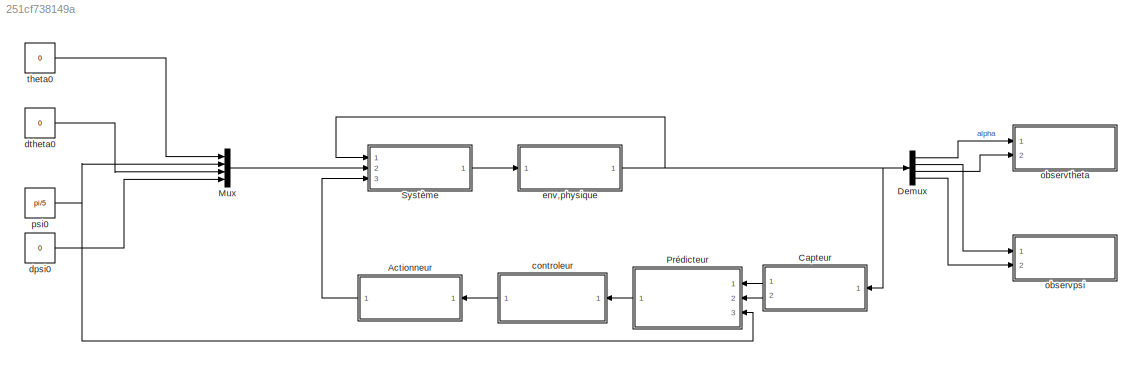
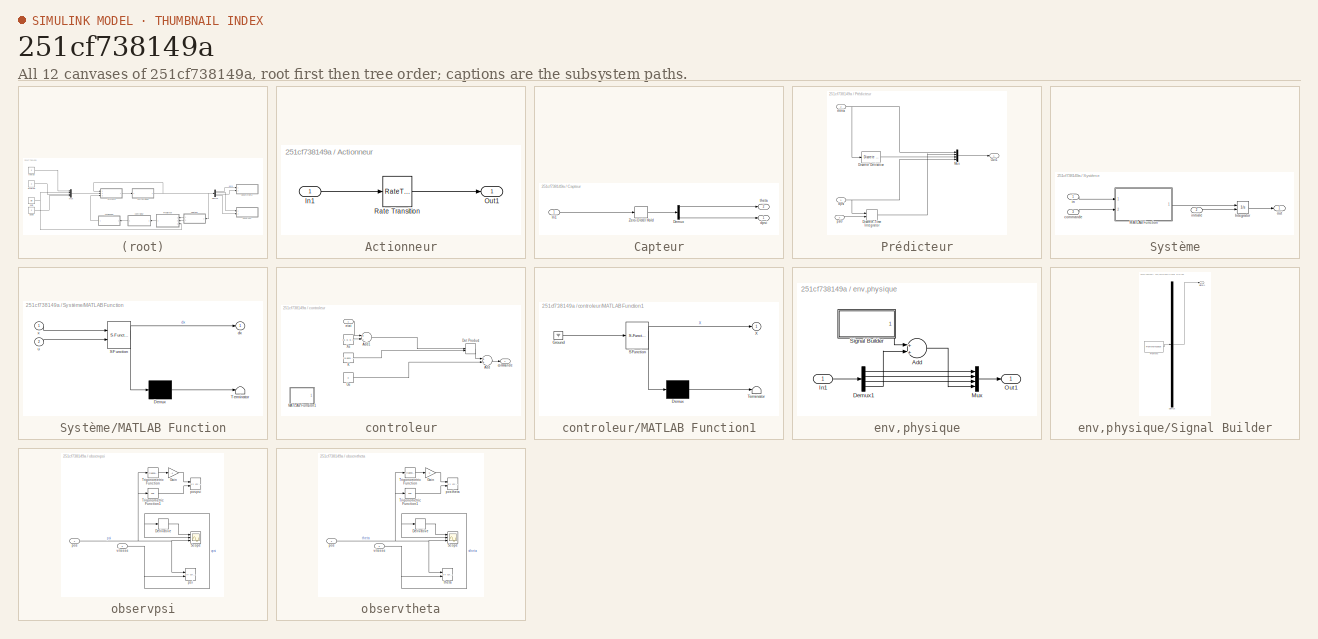
[diagram: thumbnail index - all 12 canvases of the model, root first then tree order]
MODEL slx_251cf738149a
KIND model
CONFIG AbsTol = auto
CONFIG FixedStep = 4*pi*sqrt(10/9.81) / 500
CONFIG MaxStep = auto
CONFIG MinStep = auto
CONFIG RelTol = 1e-6
CONFIG SampleTimeConstraint = Unconstrained
CONFIG Solver = VariableStepAuto
CONFIG SolverMode = Auto
CONFIG SolverName = VariableStepAuto
CONFIG StartTime = 0.0
CONFIG StopTime = 4*pi*sqrt(10/9.81)
BLOCK [SubSystem] Actionneur
  Ports = [1, 1]
  RequestExecContextInheritance = off
  Variant = off
BLOCK [Inport] Actionneur/In1
  IconDisplay = Port number
BLOCK [Outport] Actionneur/Out1
  IconDisplay = Port number
BLOCK [RateTransition] Actionneur/Rate Transition
  X0 = -1
BLOCK [SubSystem] Capteur
  Ports = [1, 2]
  RequestExecContextInheritance = off
  Variant = off
BLOCK [Demux] Capteur/Demux
  DisplayOption = bar
  Ports = [1, 4]
BLOCK [Inport] Capteur/In1
  IconDisplay = Port number
BLOCK [ZeroOrderHold] Capteur/Zero-Order Hold
  SampleTime = 0.003
BLOCK [Outport] Capteur/dpsi
  IconDisplay = Port number
BLOCK [Outport] Capteur/theta
  IconDisplay = Port number
  Port = 2
BLOCK [Demux] Demux
  DisplayOption = bar
  Ports = [1, 4]
BLOCK [Mux] Mux
  DisplayOption = bar
  Ports = [4, 1]
BLOCK [SubSystem] Prédicteur
  Ports = [3, 1]
  RequestExecContextInheritance = off
  Variant = off
BLOCK [Reference] Prédicteur/Discrete Derivative  REF=simulink/Discrete/Discrete Derivative
  Ports = [1, 1]
  SourceBlock = simulink/Discrete/Discrete Derivative
  SourceType = Discrete Derivative
BLOCK [DiscreteIntegrator] Prédicteur/Discrete-Time Integrator
  ICPrevOutput = DiscIntNeverNeededParam
  ICPrevScaledInput = DiscIntNeverNeededParam
  InitialConditionSetting = State (most efficient)
  InitialConditionSource = external
  Ports = [2, 1]
  SampleTime = -1
BLOCK [Mux] Prédicteur/Mux
  DisplayOption = bar
  Ports = [4, 1]
BLOCK [Outport] Prédicteur/Out1
  IconDisplay = Port number
BLOCK [Inport] Prédicteur/dpsi
  IconDisplay = Port number
BLOCK [Inport] Prédicteur/psi0 
  IconDisplay = Port number
  Port = 3
BLOCK [Inport] Prédicteur/theta
  IconDisplay = Port number
  Port = 2
BLOCK [SubSystem] Système
  Ports = [3, 1]
  RequestExecContextInheritance = off
  Variant = off
BLOCK [Integrator] Système/Integrator
  InitialConditionSource = external
  Ports = [2, 1]
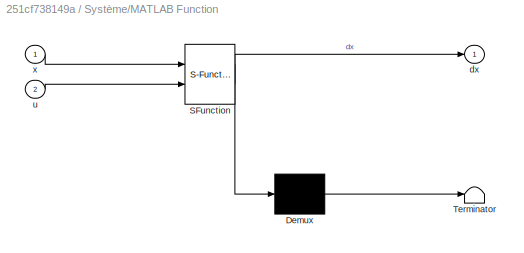
BLOCK [SubSystem] Système/MATLAB Function
  ErrorFcn = Stateflow.Translate.translate
  PermitHierarchicalResolution = ExplicitOnly
  Ports = [2, 1]
  RTWSystemCode = Inline
  RequestExecContextInheritance = off
  SFBlockType = MATLAB Function
  TreatAsAtomicUnit = on
  Variant = off
BLOCK [Demux] Système/MATLAB Function/ Demux 
  Outputs = 1
  Ports = [1, 1]
BLOCK [S-Function] Système/MATLAB Function/ SFunction 
  EnableBusSupport = on
  FunctionName = sf_sfun
  PortCounts = [2 2]
  Ports = [2, 2]
  SFunctionDeploymentMode = off
  Tag = Stateflow S-Function TP4_1 2
BLOCK [Terminator] Système/MATLAB Function/ Terminator 
BLOCK [Outport] Système/MATLAB Function/dx
  IconDisplay = Port number
BLOCK [Inport] Système/MATLAB Function/u
  IconDisplay = Port number
  Port = 2
BLOCK [Inport] Système/MATLAB Function/x
  IconDisplay = Port number
BLOCK [Inport] Système/commande
  IconDisplay = Port number
  Port = 3
BLOCK [Inport] Système/in
  IconDisplay = Port number
BLOCK [Inport] Système/initiale
  IconDisplay = Port number
  Port = 2
BLOCK [Outport] Système/out
  IconDisplay = Port number
BLOCK [SubSystem] controleur
  Ports = [1, 1]
  RequestExecContextInheritance = off
  Variant = off
BLOCK [Sum] controleur/Add
  InputSameDT = off
  OutDataTypeStr = Inherit: Inherit via internal rule
  Ports = [2, 1]
  SaturateOnIntegerOverflow = off
BLOCK [Sum] controleur/Add1
  InputSameDT = off
  Inputs = +-
  OutDataTypeStr = Inherit: Inherit via internal rule
  Ports = [2, 1]
  SaturateOnIntegerOverflow = off
BLOCK [DotProduct] controleur/Dot Product
  OutDataTypeStr = Inherit: Inherit via internal rule
BLOCK [Constant] controleur/K
  Value = [0.0021    2.8751    0.5188   -0.4118]
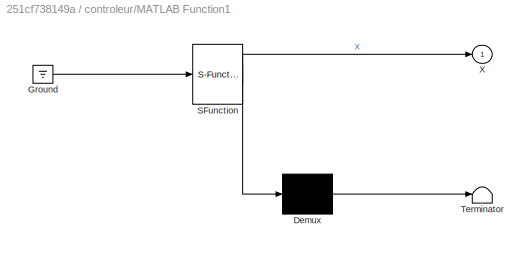
BLOCK [SubSystem] controleur/MATLAB Function1
  ErrorFcn = Stateflow.Translate.translate
  PermitHierarchicalResolution = ExplicitOnly
  Ports = [0, 1]
  RequestExecContextInheritance = off
  SFBlockType = MATLAB Function
  TreatAsAtomicUnit = on
  Variant = off
BLOCK [Demux] controleur/MATLAB Function1/ Demux 
  Outputs = 1
  Ports = [1, 1]
BLOCK [Ground] controleur/MATLAB Function1/ Ground 
BLOCK [S-Function] controleur/MATLAB Function1/ SFunction 
  EnableBusSupport = on
  FunctionName = sf_sfun
  PortCounts = [1 2]
  Ports = [1, 2]
  SFunctionDeploymentMode = off
  Tag = Stateflow S-Function TP4_1 3
BLOCK [Terminator] controleur/MATLAB Function1/ Terminator 
BLOCK [Outport] controleur/MATLAB Function1/X
  IconDisplay = Port number
BLOCK [Constant] controleur/Ue
  Value = 0
BLOCK [Constant] controleur/Xe
  Value = [0, 0, 0, 0]
BLOCK [Outport] controleur/commande
  IconDisplay = Port number
BLOCK [Inport] controleur/etat
  IconDisplay = Port number
BLOCK [Constant] dpsi0
  Value = 0
  VectorParams1D = off
BLOCK [Constant] dtheta0
  Value = 0
  VectorParams1D = off
BLOCK [SubSystem] env,physique
  Ports = [1, 1]
  RequestExecContextInheritance = off
  Variant = off
BLOCK [Sum] env,physique/Add
  InputSameDT = off
  OutDataTypeStr = Inherit: Inherit via internal rule
  Ports = [2, 1]
  SaturateOnIntegerOverflow = off
BLOCK [Demux] env,physique/Demux1
  DisplayOption = bar
  Ports = [1, 4]
BLOCK [Inport] env,physique/In1
  IconDisplay = Port number
BLOCK [Mux] env,physique/Mux
  DisplayOption = bar
  Ports = [4, 1]
BLOCK [Outport] env,physique/Out1
  IconDisplay = Port number
BLOCK [SubSystem] env,physique/Signal Builder
  ClipboardFcn = sigbuilder_block('clipboard');
  CloseFcn = sigbuilder_block('close');
  ContinueFcn = sigbuilder_block('continue');
  CopyFcn = sigbuilder_block('copy');
  DeleteFcn = sigbuilder_block('delete');
  LoadFcn = sigbuilder_block('load');
  MaskHideContents = on
  ModelCloseFcn = sigbuilder_block('modelClose');
  NameChangeFcn = sigbuilder_block('namechange');
  OpenFcn = sigbuilder_block('open',[416.084 170.526 586.611 354.695 ]);
  PauseFcn = sigbuilder_block('pause');
  Ports = [0, 1]
  PreSaveFcn = sigbuilder_block('preSave');
  RequestExecContextInheritance = off
  StartFcn = sigbuilder_block('start');
  StopFcn = sigbuilder_block('stop');
  Tag = STV Subsys
  Variant = off
BLOCK [Demux] env,physique/Signal Builder/Demux
  Outputs = 1
  Ports = [1, 1]
  Tag = STV Demux
BLOCK [FromWorkspace] env,physique/Signal Builder/FromWs
  SampleTime = 0
  Tag = STV FromWs
  VariableName = tuvar
  ZeroCross = on
BLOCK [Outport] env,physique/Signal Builder/Signal 1
  IconDisplay = Port number
  Tag = STV Outport
BLOCK [SubSystem] observpsi
  Ports = [2]
  RequestExecContextInheritance = off
  Variant = off
BLOCK [Derivative] observpsi/Derivative
BLOCK [Gain] observpsi/Gain
  Gain = -1
  OutDataTypeStr = Inherit: Inherit via internal rule
  ParamDataTypeStr = Inherit: Inherit via internal rule
  SaturateOnIntegerOverflow = off
BLOCK [Scope] observpsi/Scope
  NumInputPorts = 3
  Ports = [3]
  ScopeSpecificationString = Simulink.scopes.TimeScopeBlockCfg('CurrentConfiguration', extmgr.ConfigurationSet(extmgr.Configuration('Core','General UI',true),extmgr.Configuration('Core','Source UI',true),extmgr.Configuration('Sources','WiredSimulink',true,'DataLoggingVariableName','ScopeData1'),extmgr.Configuration('Visuals','Time Domain',true,'SerializedDisplays',{struct('MinYLimReal','-29813257787146.33594','MaxYLimReal','5...<+2843ch>
BLOCK [Trigonometry] observpsi/Trigonometric Function
  Ports = [1, 1]
BLOCK [Trigonometry] observpsi/Trigonometric Function1
  Operator = cos
  Ports = [1, 1]
BLOCK [Inport] observpsi/pos
  IconDisplay = Port number
BLOCK [Reference] observpsi/pospsi  REF=simulink/Sinks/XY Graph
  Ports = [2]
  SourceBlock = simulink/Sinks/XY Graph
  SourceType = XY scope.
BLOCK [Reference] observpsi/psi  REF=simulink/Sinks/XY Graph
  Ports = [2]
  SourceBlock = simulink/Sinks/XY Graph
  SourceType = XY scope.
BLOCK [Inport] observpsi/vitesse
  IconDisplay = Port number
  Port = 2
BLOCK [SubSystem] observtheta
  Ports = [2]
  RequestExecContextInheritance = off
  Variant = off
BLOCK [Derivative] observtheta/Derivative
BLOCK [Gain] observtheta/Gain
  Gain = -1
  OutDataTypeStr = Inherit: Inherit via internal rule
  ParamDataTypeStr = Inherit: Inherit via internal rule
  SaturateOnIntegerOverflow = off
BLOCK [Scope] observtheta/Scope
  NumInputPorts = 3
  Ports = [3]
  ScopeSpecificationString = Simulink.scopes.TimeScopeBlockCfg('CurrentConfiguration', extmgr.ConfigurationSet(extmgr.Configuration('Core','General UI',true),extmgr.Configuration('Core','Source UI',true),extmgr.Configuration('Sources','WiredSimulink',true,'DataLoggingVariableName','ScopeData1'),extmgr.Configuration('Visuals','Time Domain',true,'SerializedDisplays',{struct('MinYLimReal','-509.76284','MaxYLimReal','578.02177','...<+2806ch>
BLOCK [Trigonometry] observtheta/Trigonometric Function
  Ports = [1, 1]
BLOCK [Trigonometry] observtheta/Trigonometric Function1
  Operator = cos
  Ports = [1, 1]
BLOCK [Inport] observtheta/pos
  IconDisplay = Port number
BLOCK [Reference] observtheta/postheta  REF=simulink/Sinks/XY Graph
  Ports = [2]
  SourceBlock = simulink/Sinks/XY Graph
  SourceType = XY scope.
BLOCK [Reference] observtheta/theta  REF=simulink/Sinks/XY Graph
  Ports = [2]
  SourceBlock = simulink/Sinks/XY Graph
  SourceType = XY scope.
BLOCK [Inport] observtheta/vitesse
  IconDisplay = Port number
  Port = 2
BLOCK [Constant] psi0
  Value = pi/5
  VectorParams1D = off
BLOCK [Constant] theta0
  Value = 0
LINE Actionneur/In1:1 -> Actionneur/Rate Transition:1
LINE Actionneur/Rate Transition:1 -> Actionneur/Out1:1
LINE Actionneur:1 -> Système:3
LINE Capteur/Demux:1 -> Capteur/theta:1
LINE Capteur/Demux:4 -> Capteur/dpsi:1
LINE Capteur/In1:1 -> Capteur/Zero-Order Hold:1
LINE Capteur/Zero-Order Hold:1 -> Capteur/Demux:1
LINE Capteur:1 -> Prédicteur:1
LINE Capteur:2 -> Prédicteur:2
LINE Demux:1 -> observtheta:1
LINE Demux:2 -> observpsi:1
LINE Demux:3 -> observtheta:2
LINE Demux:4 -> observpsi:2
LINE Mux:1 -> Système:2
LINE Prédicteur/Discrete Derivative:1 -> Prédicteur/Mux:3
LINE Prédicteur/Discrete-Time Integrator:1 -> Prédicteur/Mux:2
LINE Prédicteur/Mux:1 -> Prédicteur/Out1:1
NET Prédicteur/dpsi:1 -> Prédicteur/Discrete-Time Integrator:1, Prédicteur/Mux:4
LINE Prédicteur/psi0 :1 -> Prédicteur/Discrete-Time Integrator:2
NET Prédicteur/theta:1 -> Prédicteur/Discrete Derivative:1, Prédicteur/Mux:1
LINE Prédicteur:1 -> controleur:1
LINE Système/Integrator:1 -> Système/out:1
LINE Système/MATLAB Function:1 -> Système/Integrator:1
LINE Système/commande:1 -> Système/MATLAB Function:2
LINE Système/in:1 -> Système/MATLAB Function:1
LINE Système/initiale:1 -> Système/Integrator:2
LINE Système:1 -> env,physique:1
LINE controleur/Add1:1 -> controleur/Dot Product:1
LINE controleur/Add:1 -> controleur/commande:1
LINE controleur/Dot Product:1 -> controleur/Add:1
LINE controleur/K:1 -> controleur/Dot Product:2
LINE controleur/Ue:1 -> controleur/Add:2
LINE controleur/Xe:1 -> controleur/Add1:2
LINE controleur/etat:1 -> controleur/Add1:1
LINE controleur:1 -> Actionneur:1
LINE dpsi0:1 -> Mux:4
LINE dtheta0:1 -> Mux:3
LINE env,physique/Add:1 -> env,physique/Mux:4
LINE env,physique/Demux1:1 -> env,physique/Mux:1
LINE env,physique/Demux1:2 -> env,physique/Mux:2
LINE env,physique/Demux1:3 -> env,physique/Mux:3
LINE env,physique/Demux1:4 -> env,physique/Add:2
LINE env,physique/In1:1 -> env,physique/Demux1:1
LINE env,physique/Mux:1 -> env,physique/Out1:1
LINE env,physique/Signal Builder:1 -> env,physique/Add:1
NET env,physique:1 -> Capteur:1, Demux:1, Système:1
LINE observpsi/Derivative:1 -> observpsi/Scope:1
LINE observpsi/Gain:1 -> observpsi/pospsi:1
LINE observpsi/Trigonometric Function1:1 -> observpsi/pospsi:2
LINE observpsi/Trigonometric Function:1 -> observpsi/Gain:1
NET observpsi/pos:1 -> observpsi/Scope:3, observpsi/Trigonometric Function1:1, observpsi/Trigonometric Function:1, observpsi/psi:1
NET observpsi/vitesse:1 -> observpsi/Derivative:1, observpsi/Scope:2, observpsi/psi:2
LINE observtheta/Derivative:1 -> observtheta/Scope:1
LINE observtheta/Gain:1 -> observtheta/postheta:1
LINE observtheta/Trigonometric Function1:1 -> observtheta/postheta:2
LINE observtheta/Trigonometric Function:1 -> observtheta/Gain:1
NET observtheta/pos:1 -> observtheta/Scope:3, observtheta/Trigonometric Function1:1, observtheta/Trigonometric Function:1, observtheta/theta:1
NET observtheta/vitesse:1 -> observtheta/Derivative:1, observtheta/Scope:2, observtheta/theta:2
NET psi0:1 -> Mux:2, Prédicteur:3
LINE theta0:1 -> Mux:1
note: NET lines group one-source signal fan-out (src -> all destinations, sorted); 1:1 wires keep LINE
CHART Système/MATLAB Function states=1 transitions=1
  STATE_LABEL 'eML_blk_kernel()'
  STATE_LABEL 'SCRIPT:\nfunction dx   = fonction( x, u)\n%   Dynamic equations of motion of the segway on an axis.\n%   Inputs: - x = [theta psi dtheta dpsi]\n%               theta: average angle of the wheels      [rad]\n%               psi: body pitch angle                   [rad]\n%               dtheta: average velocity of the wheels  [rad/s]\n%               dpsi: body pitch velocity               [rad/s]\n%       ...<+2034ch>'
CHART controleur/MATLAB Function1 states=1 transitions=1
  STATE_LABEL 'eML_blk_kernel()'
  STATE_LABEL 'SCRIPT:\nfunction X = f\n\n% Parameters\n    \ng = 9.81;           % gravity acceleration [m/sec^2]\nm = 0.03;           % wheel weight [kg]\nR = 0.04;           % wheel radius [m]\nJw = m*R^2/2;       % wheel inertia moment [kg*m^2]\nM = 0.6;            % body weight [kg]\nH = 0.144;          % body height [m]\nL = H/2;            % distance of the center of mass from the wheel axle [m]\nJpsi = M*L^2/3;     ...<+970ch>'
